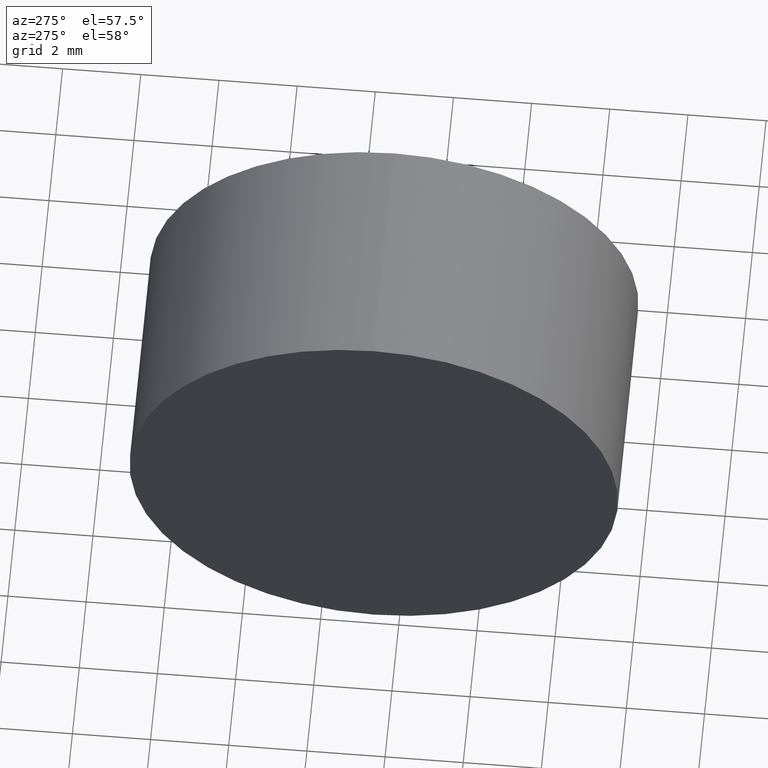
[diagram: clean part render]
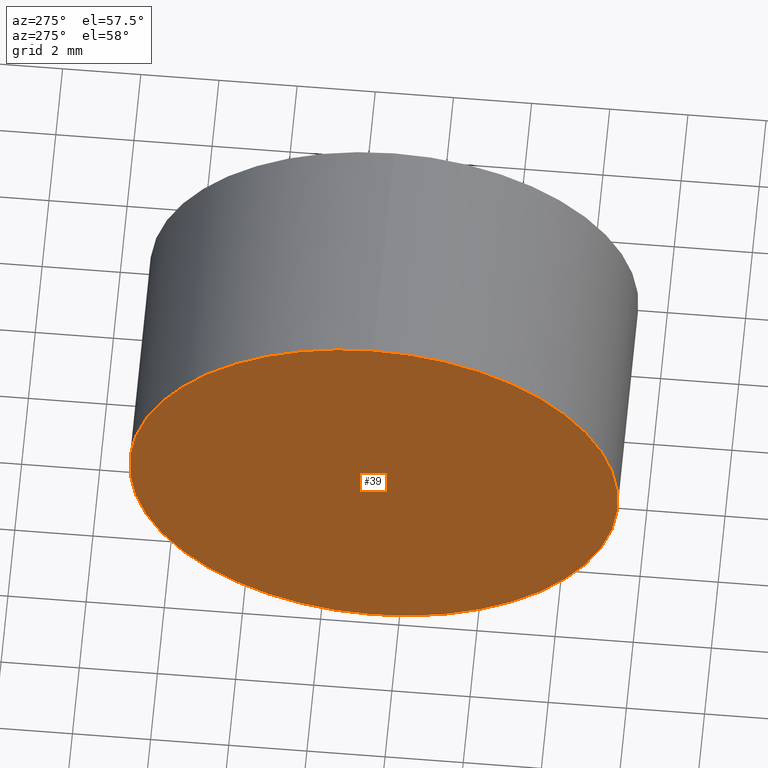
[diagram: same view with one face highlighted and labeled with its STEP entity id]
A machine part, auxiliary view. The second image highlights one B-rep face of the part: STEP entity #39.
In plain terms, the highlighted planar face has unit normal (1, 0, 0).
Its self-contained STEP definition (entity closure, byte-faithful):
#10 = CARTESIAN_POINT ( 'NONE',  ( 130.0785702462804900, 38.64658967450770900, 0.0000000000000000000 ) ) ;
#16 = EDGE_CURVE ( 'NONE', #131, #63, #113, .T. ) ;
#20 = DIRECTION ( 'NONE',  ( -1.000000000000000000, -0.0000000000000000000, -0.0000000000000000000 ) ) ;
#24 = DIRECTION ( 'NONE',  ( 0.0000000000000000000, 0.0000000000000000000, 1.000000000000000000 ) ) ;
#26 = FACE_OUTER_BOUND ( 'NONE', #27, .T. ) ;
#27 = EDGE_LOOP ( 'NONE', ( #116, #132 ) ) ;
#28 = AXIS2_PLACEMENT_3D ( 'NONE', #97, #45, #34 ) ;
#34 = DIRECTION ( 'NONE',  ( 0.0000000000000000000, 0.0000000000000000000, -1.000000000000000000 ) ) ;
#38 = AXIS2_PLACEMENT_3D ( 'NONE', #87, #20, #61 ) ;
#39 = ADVANCED_FACE ( 'NONE', ( #26 ), #98, .F. ) ;
#44 = AXIS2_PLACEMENT_3D ( 'NONE', #10, #89, #24 ) ;
#45 = DIRECTION ( 'NONE',  ( 1.000000000000000000, 0.0000000000000000000, 0.0000000000000000000 ) ) ;
#61 = DIRECTION ( 'NONE',  ( 0.0000000000000000000, 0.0000000000000000000, 1.000000000000000000 ) ) ;
#63 = VERTEX_POINT ( 'NONE', #133 ) ;
#73 = CIRCLE ( 'NONE', #44, 6.249999999999992000 ) ;
#87 = CARTESIAN_POINT ( 'NONE',  ( 130.0785702462804900, 38.64658967450770900, 0.0000000000000000000 ) ) ;
#89 = DIRECTION ( 'NONE',  ( -1.000000000000000000, -0.0000000000000000000, -0.0000000000000000000 ) ) ;
#95 = EDGE_CURVE ( 'NONE', #63, #131, #73, .T. ) ;
#97 = CARTESIAN_POINT ( 'NONE',  ( 130.0785702462804900, 38.64658967450770200, 0.0000000000000000000 ) ) ;
#98 = PLANE ( 'NONE',  #28 ) ;
#111 = CARTESIAN_POINT ( 'NONE',  ( 130.0785702462804900, 38.64658967450770900, 6.249999999999992000 ) ) ;
#113 = CIRCLE ( 'NONE', #38, 6.249999999999992000 ) ;
#116 = ORIENTED_EDGE ( 'NONE', *, *, #16, .T. ) ;
#131 = VERTEX_POINT ( 'NONE', #111 ) ;
#132 = ORIENTED_EDGE ( 'NONE', *, *, #95, .T. ) ;
#133 = CARTESIAN_POINT ( 'NONE',  ( 130.0785702462804900, 38.64658967450770900, -6.249999999999992000 ) ) ;